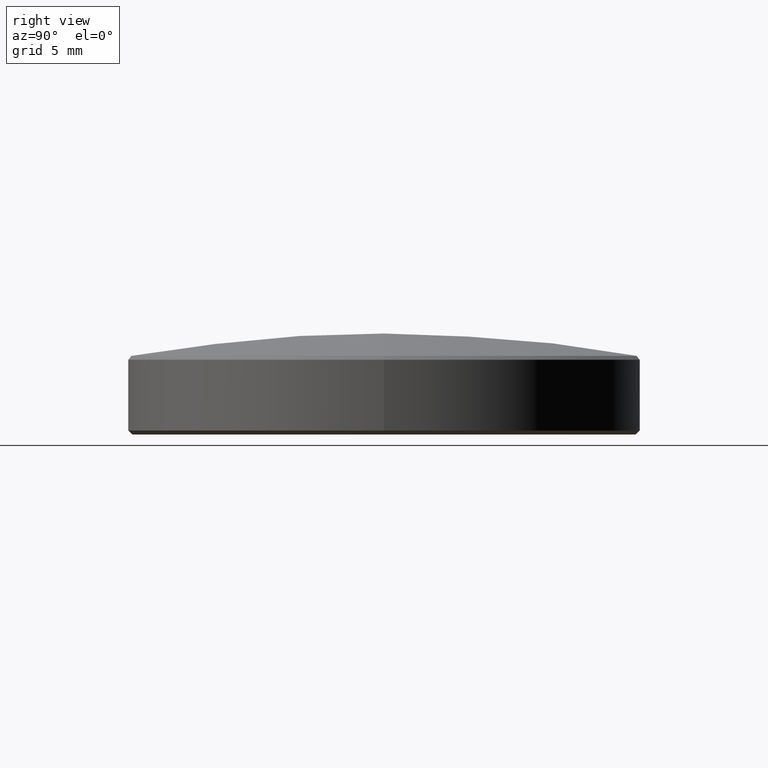
[diagram: clean part render]
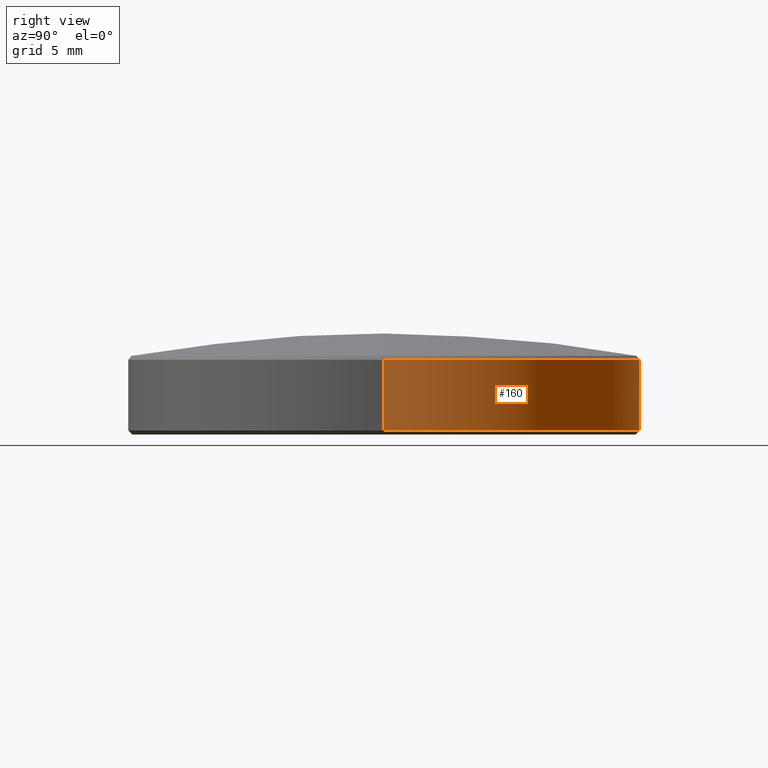
[diagram: same view with one face highlighted and labeled with its STEP entity id]
A machine part, right view. The second image highlights one B-rep face of the part: STEP entity #160.
In plain terms, the highlighted cylindrical surface (partial cylindrical patch) has radius 12.7 mm, axis along (-0, -0, -1).
Its self-contained STEP definition (entity closure, byte-faithful):
#18 = ORIENTED_EDGE ( 'NONE', *, *, #225, .F. ) ;
#30 = FACE_OUTER_BOUND ( 'NONE', #187, .T. ) ;
#37 = VERTEX_POINT ( 'NONE', #116 ) ;
#39 = VECTOR ( 'NONE', #177, 1000.000000000000000 ) ;
#42 = ORIENTED_EDGE ( 'NONE', *, *, #117, .T. ) ;
#45 = ORIENTED_EDGE ( 'NONE', *, *, #73, .T. ) ;
#51 = DIRECTION ( 'NONE',  ( 1.000000000000000000, 0.000000000000000000, 0.000000000000000000 ) ) ;
#54 = VERTEX_POINT ( 'NONE', #171 ) ;
#69 = CYLINDRICAL_SURFACE ( 'NONE', #188, 12.69999999999999929 ) ;
#70 = CARTESIAN_POINT ( 'NONE',  ( 0.000000000000000000, 0.000000000000000000, 3.698237612947643971 ) ) ;
#73 = EDGE_CURVE ( 'NONE', #203, #54, #104, .T. ) ;
#74 = CARTESIAN_POINT ( 'NONE',  ( -12.69999999999999929, 0.000000000000000000, 3.879999999999999893 ) ) ;
#97 = CARTESIAN_POINT ( 'NONE',  ( 12.69999999999999929, 1.555301434917138433E-15, 3.879999999999999893 ) ) ;
#104 = CIRCLE ( 'NONE', #129, 12.69999999999999929 ) ;
#116 = CARTESIAN_POINT ( 'NONE',  ( 12.69999999999999929, 1.555301434917138433E-15, 3.698237612947643971 ) ) ;
#117 = EDGE_CURVE ( 'NONE', #183, #37, #252, .T. ) ;
#120 = CARTESIAN_POINT ( 'NONE',  ( -12.69999999999999929, 0.000000000000000000, 3.698237612947643971 ) ) ;
#129 = AXIS2_PLACEMENT_3D ( 'NONE', #250, #185, #176 ) ;
#134 = VECTOR ( 'NONE', #234, 1000.000000000000000 ) ;
#137 = EDGE_CURVE ( 'NONE', #37, #203, #180, .T. ) ;
#142 = DIRECTION ( 'NONE',  ( -1.000000000000000000, 0.000000000000000000, 0.000000000000000000 ) ) ;
#160 = ADVANCED_FACE ( 'NONE', ( #30 ), #69, .T. ) ;
#171 = CARTESIAN_POINT ( 'NONE',  ( -12.69999999999999929, 0.000000000000000000, 0.1999999999999987899 ) ) ;
#176 = DIRECTION ( 'NONE',  ( 1.000000000000000000, 0.000000000000000000, 0.000000000000000000 ) ) ;
#177 = DIRECTION ( 'NONE',  ( -0.000000000000000000, -0.000000000000000000, -1.000000000000000000 ) ) ;
#180 = LINE ( 'NONE', #97, #39 ) ;
#183 = VERTEX_POINT ( 'NONE', #120 ) ;
#184 = AXIS2_PLACEMENT_3D ( 'NONE', #70, #213, #51 ) ;
#185 = DIRECTION ( 'NONE',  ( -0.000000000000000000, -0.000000000000000000, 1.000000000000000000 ) ) ;
#187 = EDGE_LOOP ( 'NONE', ( #42, #212, #45, #18 ) ) ;
#188 = AXIS2_PLACEMENT_3D ( 'NONE', #217, #240, #142 ) ;
#203 = VERTEX_POINT ( 'NONE', #239 ) ;
#212 = ORIENTED_EDGE ( 'NONE', *, *, #137, .T. ) ;
#213 = DIRECTION ( 'NONE',  ( 0.000000000000000000, 0.000000000000000000, -1.000000000000000000 ) ) ;
#217 = CARTESIAN_POINT ( 'NONE',  ( 0.000000000000000000, 0.000000000000000000, 3.879999999999999893 ) ) ;
#225 = EDGE_CURVE ( 'NONE', #183, #54, #257, .T. ) ;
#234 = DIRECTION ( 'NONE',  ( -0.000000000000000000, -0.000000000000000000, -1.000000000000000000 ) ) ;
#239 = CARTESIAN_POINT ( 'NONE',  ( 12.69999999999999929, 1.555301434917138433E-15, 0.1999999999999987899 ) ) ;
#240 = DIRECTION ( 'NONE',  ( -0.000000000000000000, -0.000000000000000000, -1.000000000000000000 ) ) ;
#250 = CARTESIAN_POINT ( 'NONE',  ( 0.000000000000000000, 0.000000000000000000, 0.1999999999999987899 ) ) ;
#252 = CIRCLE ( 'NONE', #184, 12.69999999999999929 ) ;
#257 = LINE ( 'NONE', #74, #134 ) ;